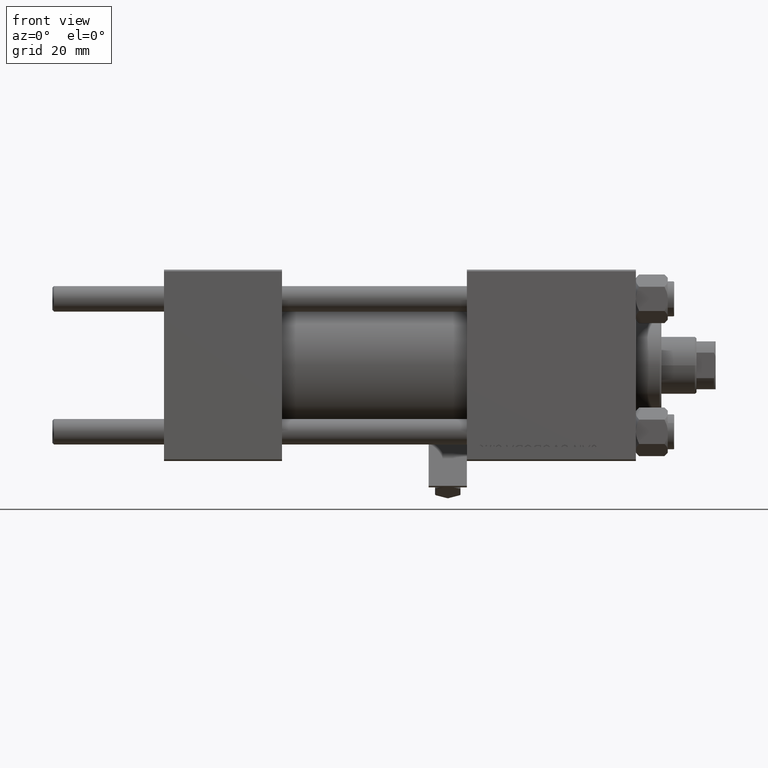
[diagram: clean part render]
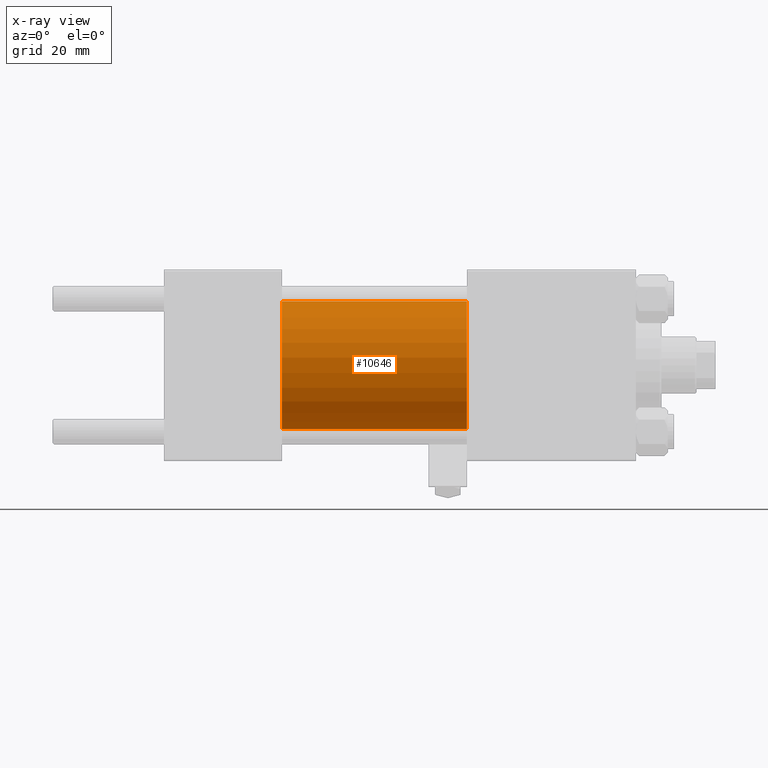
[diagram: x-ray — body ghosted, one internal face saturated and labeled with its STEP entity id]
A machine part, front view, then the same camera in x-ray: the body is ghosted and one INTERNAL B-rep face — a face not visible from any outside direction — is saturated and labeled: STEP entity #10646.
In plain terms, the highlighted cylindrical surface (partial cylindrical patch) has radius 20 mm, axis along (-1, -0, -0).
Its self-contained STEP definition (entity closure, byte-faithful):
#593 = VECTOR ( 'NONE', #16288, 1000.000000000000000 ) ;
#1058 = VERTEX_POINT ( 'NONE', #22494 ) ;
#3618 = DIRECTION ( 'NONE',  ( 1.000000000000000000, 0.000000000000000000, 0.000000000000000000 ) ) ;
#3944 = EDGE_CURVE ( 'NONE', #18745, #27167, #15971, .T. ) ;
#4799 = FACE_OUTER_BOUND ( 'NONE', #40789, .T. ) ;
#7827 = CARTESIAN_POINT ( 'NONE',  ( 95.00000000000000000, 0.000000000000000000, 20.00000000000000000 ) ) ;
#8128 = VECTOR ( 'NONE', #43945, 1000.000000000000000 ) ;
#8169 = CYLINDRICAL_SURFACE ( 'NONE', #11259, 20.00000000000000000 ) ;
#9169 = DIRECTION ( 'NONE',  ( 0.000000000000000000, 0.000000000000000000, 1.000000000000000000 ) ) ;
#10646 = ADVANCED_FACE ( 'NONE', ( #4799 ), #8169, .F. ) ;
#10776 = CARTESIAN_POINT ( 'NONE',  ( 95.00000000000000000, 0.000000000000000000, 0.000000000000000000 ) ) ;
#11259 = AXIS2_PLACEMENT_3D ( 'NONE', #20484, #36180, #9169 ) ;
#11382 = CIRCLE ( 'NONE', #33550, 20.00000000000000000 ) ;
#12102 = DIRECTION ( 'NONE',  ( 0.000000000000000000, 0.000000000000000000, -1.000000000000000000 ) ) ;
#13836 = CARTESIAN_POINT ( 'NONE',  ( 37.00000000000000000, 2.449293598294706119E-15, -20.00000000000000000 ) ) ;
#15971 = CIRCLE ( 'NONE', #20905, 20.00000000000000000 ) ;
#16288 = DIRECTION ( 'NONE',  ( -1.000000000000000000, -0.000000000000000000, -0.000000000000000000 ) ) ;
#18745 = VERTEX_POINT ( 'NONE', #35152 ) ;
#20484 = CARTESIAN_POINT ( 'NONE',  ( 95.00000000000000000, 0.000000000000000000, 0.000000000000000000 ) ) ;
#20905 = AXIS2_PLACEMENT_3D ( 'NONE', #42971, #3618, #12102 ) ;
#22494 = CARTESIAN_POINT ( 'NONE',  ( 95.00000000000000000, 2.449293598294706119E-15, -20.00000000000000000 ) ) ;
#24909 = LINE ( 'NONE', #47812, #8128 ) ;
#27167 = VERTEX_POINT ( 'NONE', #13836 ) ;
#27519 = ORIENTED_EDGE ( 'NONE', *, *, #3944, .F. ) ;
#33550 = AXIS2_PLACEMENT_3D ( 'NONE', #10776, #41895, #40936 ) ;
#34454 = EDGE_CURVE ( 'NONE', #48274, #18745, #43053, .T. ) ;
#35152 = CARTESIAN_POINT ( 'NONE',  ( 37.00000000000000000, 0.000000000000000000, 20.00000000000000000 ) ) ;
#35939 = EDGE_CURVE ( 'NONE', #48274, #1058, #11382, .T. ) ;
#36180 = DIRECTION ( 'NONE',  ( -1.000000000000000000, -0.000000000000000000, -0.000000000000000000 ) ) ;
#38465 = ORIENTED_EDGE ( 'NONE', *, *, #34454, .F. ) ;
#40469 = EDGE_CURVE ( 'NONE', #1058, #27167, #24909, .T. ) ;
#40789 = EDGE_LOOP ( 'NONE', ( #47163, #42409, #27519, #38465 ) ) ;
#40936 = DIRECTION ( 'NONE',  ( 0.000000000000000000, 0.000000000000000000, -1.000000000000000000 ) ) ;
#41895 = DIRECTION ( 'NONE',  ( 1.000000000000000000, 0.000000000000000000, 0.000000000000000000 ) ) ;
#42409 = ORIENTED_EDGE ( 'NONE', *, *, #40469, .T. ) ;
#42971 = CARTESIAN_POINT ( 'NONE',  ( 37.00000000000000000, 0.000000000000000000, 0.000000000000000000 ) ) ;
#43053 = LINE ( 'NONE', #7827, #593 ) ;
#43945 = DIRECTION ( 'NONE',  ( -1.000000000000000000, -0.000000000000000000, -0.000000000000000000 ) ) ;
#47163 = ORIENTED_EDGE ( 'NONE', *, *, #35939, .T. ) ;
#47812 = CARTESIAN_POINT ( 'NONE',  ( 95.00000000000000000, 2.449293598294706119E-15, -20.00000000000000000 ) ) ;
#48274 = VERTEX_POINT ( 'NONE', #49209 ) ;
#49209 = CARTESIAN_POINT ( 'NONE',  ( 95.00000000000000000, 0.000000000000000000, 20.00000000000000000 ) ) ;